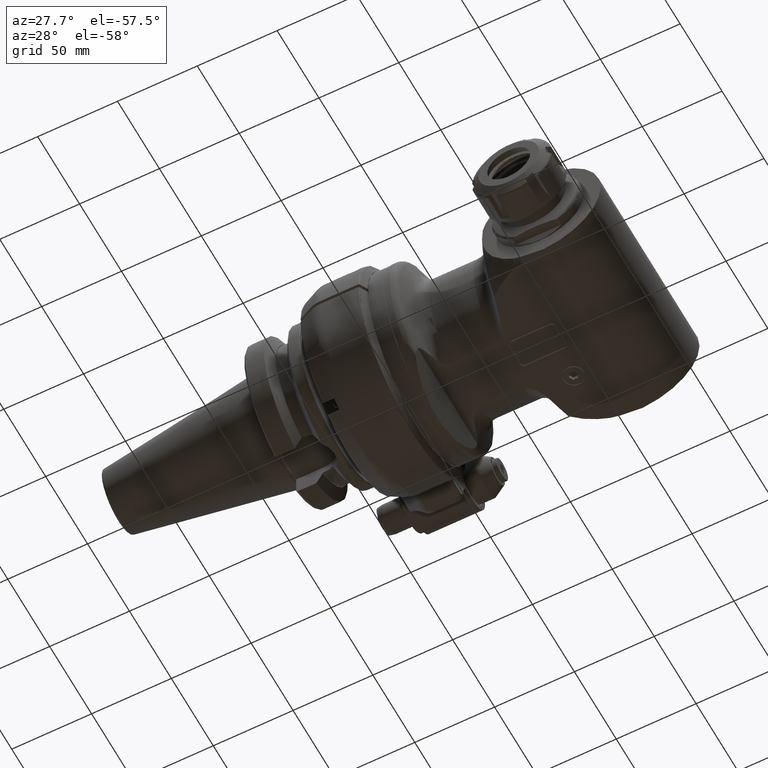
[diagram: clean part render]
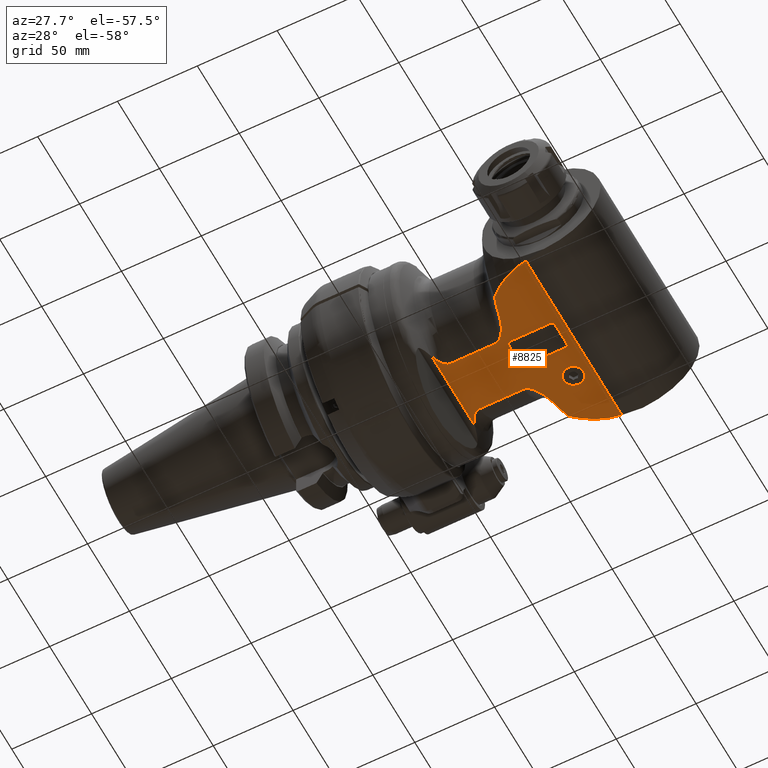
[diagram: same view with one face highlighted and labeled with its STEP entity id]
A machine part, auxiliary view. The second image highlights one B-rep face of the part: STEP entity #8825.
In plain terms, the highlighted planar face has unit normal (0, -0, 1).
Its self-contained STEP definition (entity closure, byte-faithful):
#291=B_SPLINE_CURVE_WITH_KNOTS('',3,(#29713,#29714,#29715,#29716,#29717,
#29718,#29719,#29720,#29721,#29722,#29723,#29724),.UNSPECIFIED.,.F.,.F.,
(4,2,2,2,2,4),(-4.32068483966205,-4.08844746216741,-3.81388997291122,-3.42421947444159,
-3.29920723142052,-3.19539997434443),.UNSPECIFIED.);
#296=B_SPLINE_CURVE_WITH_KNOTS('',3,(#29783,#29784,#29785,#29786,#29787,
#29788,#29789,#29790,#29791,#29792,#29793,#29794),.UNSPECIFIED.,.F.,.F.,
(4,2,2,2,2,4),(2.07011510806421,2.30235248652145,2.57690997577764,2.96658047424726,
3.09159271726834,3.19539997434443),.UNSPECIFIED.);
#300=B_SPLINE_CURVE_WITH_KNOTS('',3,(#29912,#29913,#29914,#29915,#29916,
#29917,#29918,#29919,#29920,#29921,#29922,#29923,#29924,#29925,#29926,#29927),
 .UNSPECIFIED.,.F.,.F.,(4,2,2,2,2,2,2,4),(4.20455674250215,4.34860436740711,
4.52309530297573,4.79155120042495,5.06000709787417,5.41995109479012,5.77989509170607,
5.88450777303058),.UNSPECIFIED.);
#301=B_SPLINE_CURVE_WITH_KNOTS('',3,(#30059,#30060,#30061,#30062,#30063,
#30064,#30065,#30066,#30067,#30068,#30069,#30070,#30071,#30072,#30073,#30074),
 .UNSPECIFIED.,.F.,.F.,(4,2,2,2,2,2,2,4),(2.52460571197372,2.62921839329822,
2.98916239021418,3.34910638713013,3.61756228457935,3.88601818202857,4.06050911759719,
4.20455674250215),.UNSPECIFIED.);
#534=FACE_BOUND('',#1940,.T.);
#535=FACE_BOUND('',#1941,.T.);
#889=CIRCLE('',#9740,2.);
#890=CIRCLE('',#9741,2.);
#891=CIRCLE('',#9742,2.);
#892=CIRCLE('',#9743,2.);
#893=CIRCLE('',#9744,6.25);
#1375=FACE_OUTER_BOUND('',#1939,.T.);
#1939=EDGE_LOOP('',(#7558,#7559,#7560,#7561,#7562,#7563,#7564,#7565,#7566,
#7567,#7568,#7569,#7570,#7571,#7572,#7573,#7574,#7575,#7576,#7577));
#1940=EDGE_LOOP('',(#7578,#7579,#7580,#7581,#7582,#7583,#7584,#7585));
#1941=EDGE_LOOP('',(#7586));
#2184=(
BOUNDED_CURVE()
B_SPLINE_CURVE(2,(#29930,#29931,#29932),.UNSPECIFIED.,.F.,.F.)
B_SPLINE_CURVE_WITH_KNOTS((3,3),(-6.68520697782531,-4.79555476903528),
 .UNSPECIFIED.)
CURVE()
GEOMETRIC_REPRESENTATION_ITEM()
RATIONAL_B_SPLINE_CURVE((1.88075550810917,1.80111127724969,1.69612149807277))
REPRESENTATION_ITEM('')
);
#2203=(
BOUNDED_CURVE()
B_SPLINE_CURVE(2,(#30053,#30054,#30055),.UNSPECIFIED.,.F.,.F.)
B_SPLINE_CURVE_WITH_KNOTS((3,3),(-20.4507038024818,-18.5610515938254),
 .UNSPECIFIED.)
CURVE()
GEOMETRIC_REPRESENTATION_ITEM()
RATIONAL_B_SPLINE_CURVE((1.69612149807277,1.80111127724227,1.8807555080979))
REPRESENTATION_ITEM('')
);
#2204=(
BOUNDED_CURVE()
B_SPLINE_CURVE(2,(#30082,#30083,#30084),.UNSPECIFIED.,.F.,.F.)
B_SPLINE_CURVE_WITH_KNOTS((3,3),(7.63916270705248,7.78985663535528),
 .UNSPECIFIED.)
CURVE()
GEOMETRIC_REPRESENTATION_ITEM()
RATIONAL_B_SPLINE_CURVE((1.00067401444419,1.00064262029905,1.0006097252784))
REPRESENTATION_ITEM('')
);
#2205=(
BOUNDED_CURVE()
B_SPLINE_CURVE(2,(#30086,#30087,#30088),.UNSPECIFIED.,.F.,.F.)
B_SPLINE_CURVE_WITH_KNOTS((3,3),(7.22451925617016,7.72289718576392),
 .UNSPECIFIED.)
CURVE()
GEOMETRIC_REPRESENTATION_ITEM()
RATIONAL_B_SPLINE_CURVE((1.00165302101664,1.00114017405088,1.00054870393748))
REPRESENTATION_ITEM('')
);
#2206=(
BOUNDED_CURVE()
B_SPLINE_CURVE(2,(#30090,#30091,#30092),.UNSPECIFIED.,.F.,.F.)
B_SPLINE_CURVE_WITH_KNOTS((3,3),(7.41500227662228,7.90754541881799),
 .UNSPECIFIED.)
CURVE()
GEOMETRIC_REPRESENTATION_ITEM()
RATIONAL_B_SPLINE_CURVE((1.0114396987705,1.00929899861662,1.00682343002179))
REPRESENTATION_ITEM('')
);
#2207=(
BOUNDED_CURVE()
B_SPLINE_CURVE(2,(#30094,#30095,#30096),.UNSPECIFIED.,.F.,.F.)
B_SPLINE_CURVE_WITH_KNOTS((3,3),(18.2422510927739,18.6312286891681),
 .UNSPECIFIED.)
CURVE()
GEOMETRIC_REPRESENTATION_ITEM()
RATIONAL_B_SPLINE_CURVE((1.09236877298433,1.07710986733108,1.06115823668044))
REPRESENTATION_ITEM('')
);
#2208=(
BOUNDED_CURVE()
B_SPLINE_CURVE(2,(#30097,#30098,#30099),.UNSPECIFIED.,.F.,.F.)
B_SPLINE_CURVE_WITH_KNOTS((3,3),(15.8893855046201,16.4083302031753),
 .UNSPECIFIED.)
CURVE()
GEOMETRIC_REPRESENTATION_ITEM()
RATIONAL_B_SPLINE_CURVE((1.1757453433902,1.15351140092037,1.12963768332634))
REPRESENTATION_ITEM('')
);
#2209=(
BOUNDED_CURVE()
B_SPLINE_CURVE(2,(#30101,#30102,#30103),.UNSPECIFIED.,.F.,.F.)
B_SPLINE_CURVE_WITH_KNOTS((3,3),(1.29755190517739,1.81649660373264),
 .UNSPECIFIED.)
CURVE()
GEOMETRIC_REPRESENTATION_ITEM()
RATIONAL_B_SPLINE_CURVE((1.12963768332634,1.15351140092037,1.1757453433902))
REPRESENTATION_ITEM('')
);
#2210=(
BOUNDED_CURVE()
B_SPLINE_CURVE(2,(#30105,#30106,#30107),.UNSPECIFIED.,.F.,.F.)
B_SPLINE_CURVE_WITH_KNOTS((3,3),(0.716971307091902,1.10594890348616),
 .UNSPECIFIED.)
CURVE()
GEOMETRIC_REPRESENTATION_ITEM()
RATIONAL_B_SPLINE_CURVE((1.06115823668044,1.07710986733108,1.09236877298434))
REPRESENTATION_ITEM('')
);
#2211=(
BOUNDED_CURVE()
B_SPLINE_CURVE(2,(#30109,#30110,#30111),.UNSPECIFIED.,.F.,.F.)
B_SPLINE_CURVE_WITH_KNOTS((3,3),(0.625137252988513,1.11768039518422),
 .UNSPECIFIED.)
CURVE()
GEOMETRIC_REPRESENTATION_ITEM()
RATIONAL_B_SPLINE_CURVE((1.00682343002179,1.00929899861662,1.0114396987705))
REPRESENTATION_ITEM('')
);
#2212=(
BOUNDED_CURVE()
B_SPLINE_CURVE(2,(#30113,#30114,#30115),.UNSPECIFIED.,.F.,.F.)
B_SPLINE_CURVE_WITH_KNOTS((3,3),(0.224452785800185,0.722830715445396),
 .UNSPECIFIED.)
CURVE()
GEOMETRIC_REPRESENTATION_ITEM()
RATIONAL_B_SPLINE_CURVE((1.00054870393736,1.00114017405083,1.00165302101664))
REPRESENTATION_ITEM('')
);
#2213=(
BOUNDED_CURVE()
B_SPLINE_CURVE(2,(#30116,#30117,#30118),.UNSPECIFIED.,.F.,.F.)
B_SPLINE_CURVE_WITH_KNOTS((3,3),(1.18427228731024,1.33496621558998),
 .UNSPECIFIED.)
CURVE()
GEOMETRIC_REPRESENTATION_ITEM()
RATIONAL_B_SPLINE_CURVE((1.00060972527053,1.00064262029126,1.00067401443648))
REPRESENTATION_ITEM('')
);
#2664=LINE('',#29736,#3212);
#2672=LINE('',#29907,#3220);
#2679=LINE('',#30076,#3227);
#2680=LINE('',#30080,#3228);
#2681=LINE('',#30121,#3229);
#2682=LINE('',#30125,#3230);
#2683=LINE('',#30129,#3231);
#2684=LINE('',#30133,#3232);
#3212=VECTOR('',#11753,51.50684088846);
#3220=VECTOR('',#11787,27.78976786872);
#3227=VECTOR('',#11872,27.78976786872);
#3228=VECTOR('',#11875,114.180488489);
#3229=VECTOR('',#11876,25.);
#3230=VECTOR('',#11879,14.);
#3231=VECTOR('',#11882,25.);
#3232=VECTOR('',#11885,14.);
#3969=VERTEX_POINT('',#29710);
#3970=VERTEX_POINT('',#29712);
#3972=VERTEX_POINT('',#29735);
#3974=VERTEX_POINT('',#29782);
#3998=VERTEX_POINT('',#29906);
#3999=VERTEX_POINT('',#29910);
#4000=VERTEX_POINT('',#29929);
#4027=VERTEX_POINT('',#30049);
#4028=VERTEX_POINT('',#30051);
#4029=VERTEX_POINT('',#30057);
#4030=VERTEX_POINT('',#30078);
#4031=VERTEX_POINT('',#30079);
#4032=VERTEX_POINT('',#30081);
#4033=VERTEX_POINT('',#30085);
#4034=VERTEX_POINT('',#30089);
#4035=VERTEX_POINT('',#30093);
#4036=VERTEX_POINT('',#30100);
#4037=VERTEX_POINT('',#30104);
#4038=VERTEX_POINT('',#30108);
#4039=VERTEX_POINT('',#30112);
#4040=VERTEX_POINT('',#30119);
#4041=VERTEX_POINT('',#30120);
#4042=VERTEX_POINT('',#30122);
#4043=VERTEX_POINT('',#30124);
#4044=VERTEX_POINT('',#30126);
#4045=VERTEX_POINT('',#30128);
#4046=VERTEX_POINT('',#30130);
#4047=VERTEX_POINT('',#30132);
#4048=VERTEX_POINT('',#30135);
#5159=EDGE_CURVE('',#3970,#3969,#291,.T.);
#5162=EDGE_CURVE('',#3970,#3972,#2664,.T.);
#5168=EDGE_CURVE('',#3972,#3974,#296,.T.);
#5194=EDGE_CURVE('',#3974,#3998,#2672,.T.);
#5197=EDGE_CURVE('',#3998,#3999,#300,.T.);
#5198=EDGE_CURVE('',#3999,#4000,#2184,.T.);
#5241=EDGE_CURVE('',#4028,#4027,#2203,.T.);
#5243=EDGE_CURVE('',#4027,#4029,#301,.T.);
#5244=EDGE_CURVE('',#4029,#3969,#2679,.T.);
#5245=EDGE_CURVE('',#4030,#4031,#2680,.T.);
#5246=EDGE_CURVE('',#4032,#4031,#2204,.T.);
#5247=EDGE_CURVE('',#4033,#4032,#2205,.T.);
#5248=EDGE_CURVE('',#4034,#4033,#2206,.T.);
#5249=EDGE_CURVE('',#4035,#4034,#2207,.T.);
#5250=EDGE_CURVE('',#4000,#4035,#2208,.T.);
#5251=EDGE_CURVE('',#4036,#4028,#2209,.T.);
#5252=EDGE_CURVE('',#4037,#4036,#2210,.T.);
#5253=EDGE_CURVE('',#4038,#4037,#2211,.T.);
#5254=EDGE_CURVE('',#4039,#4038,#2212,.T.);
#5255=EDGE_CURVE('',#4030,#4039,#2213,.T.);
#5256=EDGE_CURVE('',#4040,#4041,#2681,.T.);
#5257=EDGE_CURVE('',#4041,#4042,#889,.T.);
#5258=EDGE_CURVE('',#4042,#4043,#2682,.T.);
#5259=EDGE_CURVE('',#4043,#4044,#890,.T.);
#5260=EDGE_CURVE('',#4044,#4045,#2683,.T.);
#5261=EDGE_CURVE('',#4045,#4046,#891,.T.);
#5262=EDGE_CURVE('',#4046,#4047,#2684,.T.);
#5263=EDGE_CURVE('',#4047,#4040,#892,.T.);
#5264=EDGE_CURVE('',#4048,#4048,#893,.T.);
#7558=ORIENTED_EDGE('',*,*,#5245,.T.);
#7559=ORIENTED_EDGE('',*,*,#5246,.F.);
#7560=ORIENTED_EDGE('',*,*,#5247,.F.);
#7561=ORIENTED_EDGE('',*,*,#5248,.F.);
#7562=ORIENTED_EDGE('',*,*,#5249,.F.);
#7563=ORIENTED_EDGE('',*,*,#5250,.F.);
#7564=ORIENTED_EDGE('',*,*,#5198,.F.);
#7565=ORIENTED_EDGE('',*,*,#5197,.F.);
#7566=ORIENTED_EDGE('',*,*,#5194,.F.);
#7567=ORIENTED_EDGE('',*,*,#5168,.F.);
#7568=ORIENTED_EDGE('',*,*,#5162,.F.);
#7569=ORIENTED_EDGE('',*,*,#5159,.T.);
#7570=ORIENTED_EDGE('',*,*,#5244,.F.);
#7571=ORIENTED_EDGE('',*,*,#5243,.F.);
#7572=ORIENTED_EDGE('',*,*,#5241,.F.);
#7573=ORIENTED_EDGE('',*,*,#5251,.F.);
#7574=ORIENTED_EDGE('',*,*,#5252,.F.);
#7575=ORIENTED_EDGE('',*,*,#5253,.F.);
#7576=ORIENTED_EDGE('',*,*,#5254,.F.);
#7577=ORIENTED_EDGE('',*,*,#5255,.F.);
#7578=ORIENTED_EDGE('',*,*,#5256,.T.);
#7579=ORIENTED_EDGE('',*,*,#5257,.T.);
#7580=ORIENTED_EDGE('',*,*,#5258,.T.);
#7581=ORIENTED_EDGE('',*,*,#5259,.T.);
#7582=ORIENTED_EDGE('',*,*,#5260,.T.);
#7583=ORIENTED_EDGE('',*,*,#5261,.T.);
#7584=ORIENTED_EDGE('',*,*,#5262,.T.);
#7585=ORIENTED_EDGE('',*,*,#5263,.T.);
#7586=ORIENTED_EDGE('',*,*,#5264,.T.);
#8379=PLANE('',#9739);
#8825=ADVANCED_FACE('',(#1375,#534,#535),#8379,.F.);
#9739=AXIS2_PLACEMENT_3D('',#30077,#11873,#11874);
#9740=AXIS2_PLACEMENT_3D('',#30123,#11877,#11878);
#9741=AXIS2_PLACEMENT_3D('',#30127,#11880,#11881);
#9742=AXIS2_PLACEMENT_3D('',#30131,#11883,#11884);
#9743=AXIS2_PLACEMENT_3D('',#30134,#11886,#11887);
#9744=AXIS2_PLACEMENT_3D('',#30136,#11888,#11889);
#11753=DIRECTION('',(-7.141013110807E-11,-1.,4.955204906426E-13));
#11787=DIRECTION('',(1.,0.,0.));
#11872=DIRECTION('',(-1.,0.,0.));
#11873=DIRECTION('center_axis',(0.,0.,1.));
#11874=DIRECTION('ref_axis',(-1.,0.,0.));
#11875=DIRECTION('',(-2.379667014481E-13,-1.,1.20962257917E-12));
#11876=DIRECTION('',(-1.,0.,0.));
#11877=DIRECTION('center_axis',(0.,0.,1.));
#11878=DIRECTION('ref_axis',(0.,1.,0.));
#11879=DIRECTION('',(0.,-1.,0.));
#11880=DIRECTION('center_axis',(0.,0.,1.));
#11881=DIRECTION('ref_axis',(-1.,0.,0.));
#11882=DIRECTION('',(1.,0.,0.));
#11883=DIRECTION('center_axis',(0.,0.,1.));
#11884=DIRECTION('ref_axis',(0.,-1.,0.));
#11885=DIRECTION('',(0.,1.,0.));
#11886=DIRECTION('center_axis',(0.,0.,1.));
#11887=DIRECTION('ref_axis',(1.,0.,0.));
#11888=DIRECTION('center_axis',(0.,0.,1.));
#11889=DIRECTION('ref_axis',(0.,-1.,0.));
#29710=CARTESIAN_POINT('',(31.79063844602,16.88934575405,-39.));
#29712=CARTESIAN_POINT('',(24.7315248227963,25.7534192302014,-39.0000000062436));
#29713=CARTESIAN_POINT('Ctrl Pts',(24.7315246143384,25.7534191689493,-39.));
#29714=CARTESIAN_POINT('Ctrl Pts',(24.9557782163708,24.9902224322442,-39.));
#29715=CARTESIAN_POINT('Ctrl Pts',(25.2344493278238,24.1872809929623,-39.));
#29716=CARTESIAN_POINT('Ctrl Pts',(25.9425135976565,22.4778926599153,-39.));
#29717=CARTESIAN_POINT('Ctrl Pts',(26.3910385300965,21.5795416916554,-39.));
#29718=CARTESIAN_POINT('Ctrl Pts',(27.5326068493983,19.6824304983136,-39.));
#29719=CARTESIAN_POINT('Ctrl Pts',(28.4771803870093,18.4425634126605,-39.));
#29720=CARTESIAN_POINT('Ctrl Pts',(29.8752639425143,17.4482409864561,-39.));
#29721=CARTESIAN_POINT('Ctrl Pts',(30.3137814007137,17.2079257490347,-39.));
#29722=CARTESIAN_POINT('Ctrl Pts',(31.0358042886364,16.9620750928508,-39.));
#29723=CARTESIAN_POINT('Ctrl Pts',(31.4446142557664,16.8893457540545,-39.));
#29724=CARTESIAN_POINT('Ctrl Pts',(31.79063844602,16.8893457540545,-39.));
#29735=CARTESIAN_POINT('',(24.7315248197221,-25.7534192396075,-39.0000000062351));
#29736=CARTESIAN_POINT('',(24.73152526349,25.75342044036,-39.00000001873));
#29782=CARTESIAN_POINT('',(31.79063844602,-16.88934575405,-39.));
#29783=CARTESIAN_POINT('Ctrl Pts',(24.7315246115499,-25.7534191784393,-39.));
#29784=CARTESIAN_POINT('Ctrl Pts',(24.9557782140714,-24.9902224389037,-39.));
#29785=CARTESIAN_POINT('Ctrl Pts',(25.2344493264789,-24.1872809962091,-39.));
#29786=CARTESIAN_POINT('Ctrl Pts',(25.9425135976565,-22.4778926599153,-39.));
#29787=CARTESIAN_POINT('Ctrl Pts',(26.3910385300965,-21.5795416916554,-39.));
#29788=CARTESIAN_POINT('Ctrl Pts',(27.5326068493983,-19.6824304983136,-39.));
#29789=CARTESIAN_POINT('Ctrl Pts',(28.4771803870093,-18.4425634126605,-39.));
#29790=CARTESIAN_POINT('Ctrl Pts',(29.8752639425143,-17.4482409864561,-39.));
#29791=CARTESIAN_POINT('Ctrl Pts',(30.3137814007137,-17.2079257490347,-39.));
#29792=CARTESIAN_POINT('Ctrl Pts',(31.0358042886364,-16.9620750928508,-39.));
#29793=CARTESIAN_POINT('Ctrl Pts',(31.4446142557664,-16.8893457540545,-39.));
#29794=CARTESIAN_POINT('Ctrl Pts',(31.79063844602,-16.8893457540545,-39.));
#29906=CARTESIAN_POINT('',(59.58040631473,-16.88934575405,-39.));
#29907=CARTESIAN_POINT('',(31.79063844602,-16.88934575405,-39.));
#29910=CARTESIAN_POINT('',(69.77942871497,-30.28725774363,-39.));
#29912=CARTESIAN_POINT('Ctrl Pts',(59.58040631473,-16.8893457540545,-39.));
#29913=CARTESIAN_POINT('Ctrl Pts',(60.0605650644132,-16.8893457540545,-39.));
#29914=CARTESIAN_POINT('Ctrl Pts',(60.6276692434044,-16.991268970364,-39.));
#29915=CARTESIAN_POINT('Ctrl Pts',(61.6322229090443,-17.3351889944171,-39.));
#29916=CARTESIAN_POINT('Ctrl Pts',(62.2437200783079,-17.6716776235154,-39.));
#29917=CARTESIAN_POINT('Ctrl Pts',(63.4476872401324,-18.5263612782665,-39.));
#29918=CARTESIAN_POINT('Ctrl Pts',(64.1471256303528,-19.2050269011047,-39.));
#29919=CARTESIAN_POINT('Ctrl Pts',(65.408861400821,-20.6905312952137,-39.));
#29920=CARTESIAN_POINT('Ctrl Pts',(65.9720426174389,-21.4966191402456,-39.));
#29921=CARTESIAN_POINT('Ctrl Pts',(67.0767838601245,-23.276274656356,-39.));
#29922=CARTESIAN_POINT('Ctrl Pts',(67.6861256417981,-24.4435632543477,-39.));
#29923=CARTESIAN_POINT('Ctrl Pts',(68.7332179416094,-26.8540942035798,-39.));
#29924=CARTESIAN_POINT('Ctrl Pts',(69.1709005518525,-28.0973660522483,-39.));
#29925=CARTESIAN_POINT('Ctrl Pts',(69.5984001121038,-29.5857091975554,-39.));
#29926=CARTESIAN_POINT('Ctrl Pts',(69.6914564051552,-29.9322632181243,-39.));
#29927=CARTESIAN_POINT('Ctrl Pts',(69.7794287149653,-30.2872577436312,-39.));
#29929=CARTESIAN_POINT('',(73.6664327750179,-44.2718873437757,-38.9999999706286));
#29930=CARTESIAN_POINT('Ctrl Pts',(69.7794287149283,-30.2872577434806,-39.));
#29931=CARTESIAN_POINT('Ctrl Pts',(71.3583992513149,-36.6588751031364,-39.));
#29932=CARTESIAN_POINT('Ctrl Pts',(73.6664327585411,-44.2718873487797,-39.));
#30049=CARTESIAN_POINT('',(69.77942871497,30.28725774363,-39.));
#30051=CARTESIAN_POINT('',(73.6664327750179,44.2718873437756,-38.9999999706286));
#30053=CARTESIAN_POINT('Ctrl Pts',(73.6664327585411,44.2718873487797,-39.));
#30054=CARTESIAN_POINT('Ctrl Pts',(71.3583992514687,36.6588751036437,-39.));
#30055=CARTESIAN_POINT('Ctrl Pts',(69.7794287151423,30.2872577443441,-39.));
#30057=CARTESIAN_POINT('',(59.58040631473,16.88934575405,-39.));
#30059=CARTESIAN_POINT('Ctrl Pts',(69.7794287149653,30.2872577436312,-39.));
#30060=CARTESIAN_POINT('Ctrl Pts',(69.6914564051552,29.9322632181243,-39.));
#30061=CARTESIAN_POINT('Ctrl Pts',(69.5984001121038,29.5857091975554,-39.));
#30062=CARTESIAN_POINT('Ctrl Pts',(69.1709005518525,28.0973660522483,-39.));
#30063=CARTESIAN_POINT('Ctrl Pts',(68.7332179416094,26.8540942035798,-39.));
#30064=CARTESIAN_POINT('Ctrl Pts',(67.6861256417981,24.4435632543477,-39.));
#30065=CARTESIAN_POINT('Ctrl Pts',(67.0767838601245,23.276274656356,-39.));
#30066=CARTESIAN_POINT('Ctrl Pts',(65.9720426174389,21.4966191402456,-39.));
#30067=CARTESIAN_POINT('Ctrl Pts',(65.408861400821,20.6905312952137,-39.));
#30068=CARTESIAN_POINT('Ctrl Pts',(64.1471256303528,19.2050269011047,-39.));
#30069=CARTESIAN_POINT('Ctrl Pts',(63.4476872401324,18.5263612782665,-39.));
#30070=CARTESIAN_POINT('Ctrl Pts',(62.2437200783079,17.6716776235153,-39.));
#30071=CARTESIAN_POINT('Ctrl Pts',(61.6322229090443,17.3351889944171,-39.));
#30072=CARTESIAN_POINT('Ctrl Pts',(60.6276692434044,16.991268970364,-39.));
#30073=CARTESIAN_POINT('Ctrl Pts',(60.0605650644132,16.8893457540545,-39.));
#30074=CARTESIAN_POINT('Ctrl Pts',(59.58040631473,16.8893457540545,-39.));
#30076=CARTESIAN_POINT('',(59.58040631473,16.88934575405,-39.));
#30077=CARTESIAN_POINT('Origin',(159.7636822792,-111.0349607239,-39.));
#30078=CARTESIAN_POINT('',(100.229063317582,57.0902369205814,-38.9999995293897));
#30079=CARTESIAN_POINT('',(100.229063317563,-57.0902369205901,-38.999999529344));
#30080=CARTESIAN_POINT('',(100.2290632468,57.09024424417,-38.99999857477));
#30081=CARTESIAN_POINT('',(98.63253005813,-56.92099788303,-39.));
#30082=CARTESIAN_POINT('Ctrl Pts',(98.6325300581292,-56.9209978830378,-39.));
#30083=CARTESIAN_POINT('Ctrl Pts',(99.4296117355925,-57.005531839153,-39.));
#30084=CARTESIAN_POINT('Ctrl Pts',(100.229063317664,-57.0902369196356,-39.));
#30085=CARTESIAN_POINT('',(92.96124823851,-55.70457790882,-39.));
#30086=CARTESIAN_POINT('Ctrl Pts',(92.9612482385086,-55.7045779088213,-39.));
#30087=CARTESIAN_POINT('Ctrl Pts',(95.7662626209895,-56.3083484069068,-39.));
#30088=CARTESIAN_POINT('Ctrl Pts',(98.6325300575376,-56.9209978829045,-39.));
#30089=CARTESIAN_POINT('',(86.805881166227,-53.2447180491912,-38.9999999995767));
#30090=CARTESIAN_POINT('Ctrl Pts',(86.8058811663864,-53.2447180487954,-39.));
#30091=CARTESIAN_POINT('Ctrl Pts',(89.8140766885446,-54.4562908156815,-39.));
#30092=CARTESIAN_POINT('Ctrl Pts',(92.9612482385088,-55.7045779088232,-39.));
#30093=CARTESIAN_POINT('',(80.0677708569587,-49.4772675203977,-38.9999999959838));
#30094=CARTESIAN_POINT('Ctrl Pts',(80.0677708590003,-49.4772675167981,-39.));
#30095=CARTESIAN_POINT('Ctrl Pts',(83.3132619230116,-51.3171852187043,-39.));
#30096=CARTESIAN_POINT('Ctrl Pts',(86.8058811662913,-53.2447180490748,-39.));
#30097=CARTESIAN_POINT('Ctrl Pts',(73.6664328049353,-44.271887307859,-39.));
#30098=CARTESIAN_POINT('Ctrl Pts',(76.6893861042106,-46.7892433127454,-39.));
#30099=CARTESIAN_POINT('Ctrl Pts',(80.067770857659,-49.4772675195193,-39.));
#30100=CARTESIAN_POINT('',(80.0677708569587,49.4772675203977,-38.9999999959838));
#30101=CARTESIAN_POINT('Ctrl Pts',(80.0677708576589,49.4772675195192,-39.));
#30102=CARTESIAN_POINT('Ctrl Pts',(76.6893861042105,46.7892433127454,-39.));
#30103=CARTESIAN_POINT('Ctrl Pts',(73.6664328049353,44.271887307859,-39.));
#30104=CARTESIAN_POINT('',(86.8058811662271,53.2447180491912,-38.9999999995767));
#30105=CARTESIAN_POINT('Ctrl Pts',(86.8058811662913,53.2447180490748,-39.));
#30106=CARTESIAN_POINT('Ctrl Pts',(83.3132619230115,51.3171852187042,-39.));
#30107=CARTESIAN_POINT('Ctrl Pts',(80.0677708590003,49.4772675167981,-39.));
#30108=CARTESIAN_POINT('',(92.96124823851,55.70457790882,-39.));
#30109=CARTESIAN_POINT('Ctrl Pts',(92.9612482385087,55.7045779088232,-39.));
#30110=CARTESIAN_POINT('Ctrl Pts',(89.8140766885446,54.4562908156815,-39.));
#30111=CARTESIAN_POINT('Ctrl Pts',(86.8058811663865,53.2447180487954,-39.));
#30112=CARTESIAN_POINT('',(98.63253005813,56.92099788303,-39.));
#30113=CARTESIAN_POINT('Ctrl Pts',(98.6325300581298,56.920997883031,-39.));
#30114=CARTESIAN_POINT('Ctrl Pts',(95.7662626212792,56.3083484069692,-39.));
#30115=CARTESIAN_POINT('Ctrl Pts',(92.9612482385086,55.7045779088213,-39.));
#30116=CARTESIAN_POINT('Ctrl Pts',(100.229063317683,57.090236919627,-39.));
#30117=CARTESIAN_POINT('Ctrl Pts',(99.4296117356027,57.0055318391433,-39.));
#30118=CARTESIAN_POINT('Ctrl Pts',(98.6325300581303,56.9209978830272,-39.));
#30119=CARTESIAN_POINT('',(93.00000045596,3.499999689438,-39.));
#30120=CARTESIAN_POINT('',(68.00000045596,3.499999689438,-39.));
#30121=CARTESIAN_POINT('',(93.00000045596,3.499999689438,-39.));
#30122=CARTESIAN_POINT('',(66.00000045596,1.499999689438,-39.));
#30123=CARTESIAN_POINT('Origin',(68.00000045596,1.499999689438,-39.));
#30124=CARTESIAN_POINT('',(66.00000045596,-12.50000031056,-39.));
#30125=CARTESIAN_POINT('',(66.00000045596,1.499999689438,-39.));
#30126=CARTESIAN_POINT('',(68.00000045596,-14.50000031056,-39.));
#30127=CARTESIAN_POINT('Origin',(68.00000045596,-12.50000031056,-39.));
#30128=CARTESIAN_POINT('',(93.00000045596,-14.50000031056,-39.));
#30129=CARTESIAN_POINT('',(68.00000045596,-14.50000031056,-39.));
#30130=CARTESIAN_POINT('',(95.00000045596,-12.50000031056,-39.));
#30131=CARTESIAN_POINT('Origin',(93.00000045596,-12.50000031056,-39.));
#30132=CARTESIAN_POINT('',(95.00000045596,1.499999689438,-39.));
#30133=CARTESIAN_POINT('',(95.00000045596,-12.50000031056,-39.));
#30134=CARTESIAN_POINT('Origin',(93.00000045596,1.499999689438,-39.));
#30135=CARTESIAN_POINT('',(88.5,28.25,-39.));
#30136=CARTESIAN_POINT('Origin',(88.5,22.,-39.));